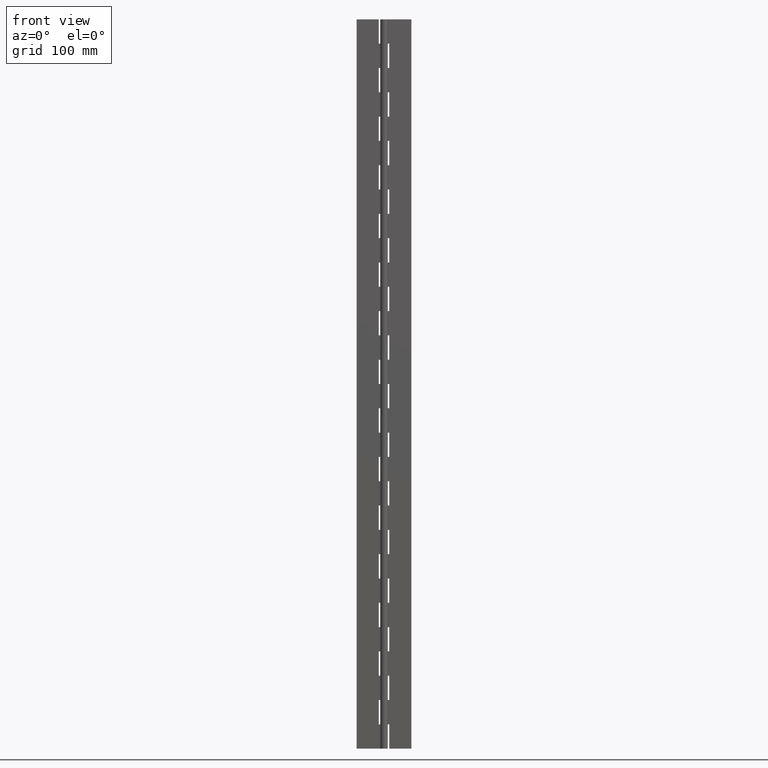
[diagram: clean part render]
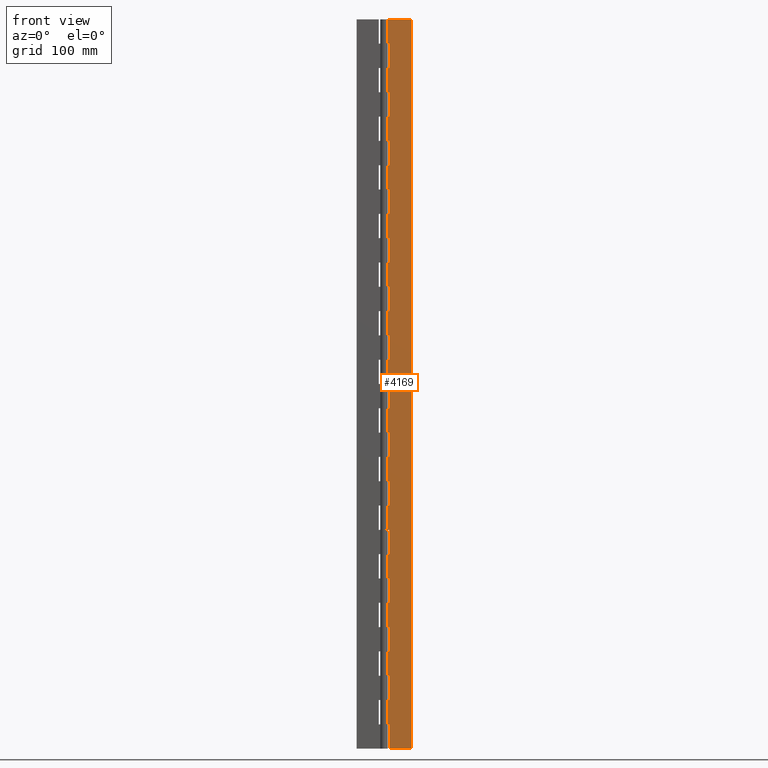
[diagram: same view with one face highlighted and labeled with its STEP entity id]
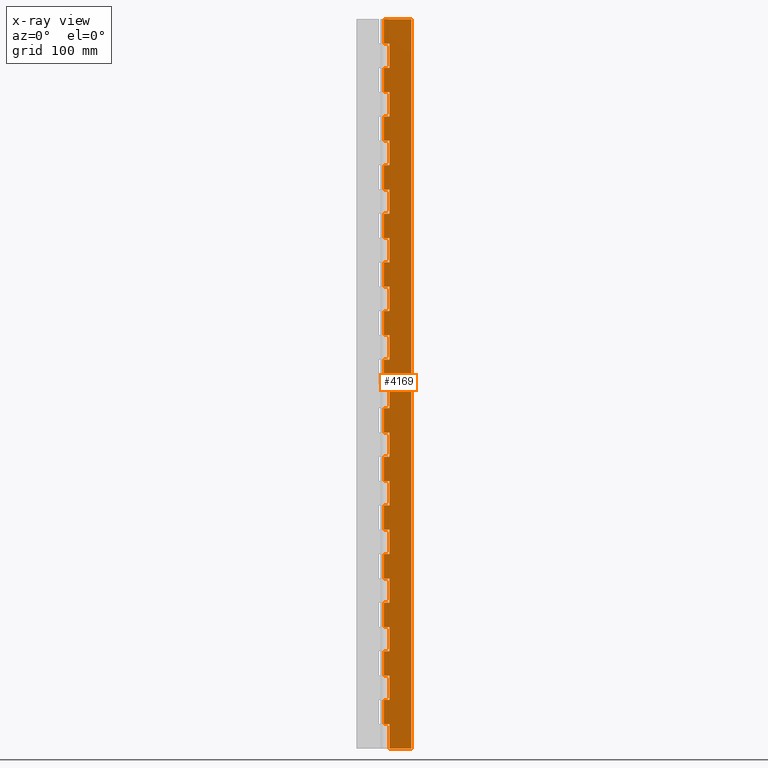
[diagram: x-ray of the same camera — body ghosted, the highlighted face saturated]
A machine part, front view. The second image highlights one B-rep face of the part: STEP entity #4169.
The next image is the same camera in x-ray: the body ghosted, the highlighted face saturated — about 0% of this face is hidden behind the body in this view.
In plain terms, the highlighted face is a freeform B-spline surface patch.
Its self-contained STEP definition (entity closure, byte-faithful):
#49=CARTESIAN_POINT('',(4.299995999999895,1.499999999999946,580.0));
#50=VERTEX_POINT('',#49);
#51=CARTESIAN_POINT('',(-2.755364E-016,1.500000000000000,580.0));
#52=VERTEX_POINT('',#51);
#53=CARTESIAN_POINT('',(4.299995999999895,1.499999999999946,580.0));
#54=CARTESIAN_POINT('',(-2.755364E-016,1.500000000000000,580.0));
#55=QUASI_UNIFORM_CURVE('',1,(#53,#54),.UNSPECIFIED.,.F.,.U.);
#56=EDGE_CURVE('',#50,#52,#55,.T.);
#127=CARTESIAN_POINT('',(-2.755364E-016,1.500000000000000,560.0));
#128=VERTEX_POINT('',#127);
#129=CARTESIAN_POINT('',(4.299995999999895,1.499999999999946,560.0));
#130=VERTEX_POINT('',#129);
#131=CARTESIAN_POINT('',(-2.755364E-016,1.500000000000000,560.0));
#132=CARTESIAN_POINT('',(4.299995999999895,1.499999999999946,560.0));
#133=QUASI_UNIFORM_CURVE('',1,(#131,#132),.UNSPECIFIED.,.F.,.U.);
#134=EDGE_CURVE('',#128,#130,#133,.T.);
#205=CARTESIAN_POINT('',(4.299995999999895,1.499999999999946,560.0));
#206=CARTESIAN_POINT('',(4.299995999999895,1.499999999999946,580.0));
#207=QUASI_UNIFORM_CURVE('',1,(#205,#206),.UNSPECIFIED.,.F.,.U.);
#208=EDGE_CURVE('',#130,#50,#207,.T.);
#225=CARTESIAN_POINT('',(4.299995999999895,1.499999999999946,540.0));
#226=VERTEX_POINT('',#225);
#227=CARTESIAN_POINT('',(-2.755364E-016,1.500000000000000,540.0));
#228=VERTEX_POINT('',#227);
#229=CARTESIAN_POINT('',(4.299995999999895,1.499999999999946,540.0));
#230=CARTESIAN_POINT('',(-2.755364E-016,1.500000000000000,540.0));
#231=QUASI_UNIFORM_CURVE('',1,(#229,#230),.UNSPECIFIED.,.F.,.U.);
#232=EDGE_CURVE('',#226,#228,#231,.T.);
#303=CARTESIAN_POINT('',(-2.755364E-016,1.500000000000000,520.0));
#304=VERTEX_POINT('',#303);
#305=CARTESIAN_POINT('',(4.299995999999895,1.499999999999946,520.0));
#306=VERTEX_POINT('',#305);
#307=CARTESIAN_POINT('',(-2.755364E-016,1.500000000000000,520.0));
#308=CARTESIAN_POINT('',(4.299995999999895,1.499999999999946,520.0));
#309=QUASI_UNIFORM_CURVE('',1,(#307,#308),.UNSPECIFIED.,.F.,.U.);
#310=EDGE_CURVE('',#304,#306,#309,.T.);
#381=CARTESIAN_POINT('',(4.299995999999895,1.499999999999946,520.0));
#382=CARTESIAN_POINT('',(4.299995999999895,1.499999999999946,540.0));
#383=QUASI_UNIFORM_CURVE('',1,(#381,#382),.UNSPECIFIED.,.F.,.U.);
#384=EDGE_CURVE('',#306,#226,#383,.T.);
#401=CARTESIAN_POINT('',(4.299995999999895,1.499999999999946,500.0));
#402=VERTEX_POINT('',#401);
#403=CARTESIAN_POINT('',(-2.755364E-016,1.500000000000000,500.0));
#404=VERTEX_POINT('',#403);
#405=CARTESIAN_POINT('',(4.299995999999895,1.499999999999946,500.0));
#406=CARTESIAN_POINT('',(-2.755364E-016,1.500000000000000,500.0));
#407=QUASI_UNIFORM_CURVE('',1,(#405,#406),.UNSPECIFIED.,.F.,.U.);
#408=EDGE_CURVE('',#402,#404,#407,.T.);
#479=CARTESIAN_POINT('',(-2.755364E-016,1.500000000000000,480.0));
#480=VERTEX_POINT('',#479);
#481=CARTESIAN_POINT('',(4.299995999999895,1.499999999999946,480.0));
#482=VERTEX_POINT('',#481);
#483=CARTESIAN_POINT('',(-2.755364E-016,1.500000000000000,480.0));
#484=CARTESIAN_POINT('',(4.299995999999895,1.499999999999946,480.0));
#485=QUASI_UNIFORM_CURVE('',1,(#483,#484),.UNSPECIFIED.,.F.,.U.);
#486=EDGE_CURVE('',#480,#482,#485,.T.);
#557=CARTESIAN_POINT('',(4.299995999999895,1.499999999999946,480.0));
#558=CARTESIAN_POINT('',(4.299995999999895,1.499999999999946,500.0));
#559=QUASI_UNIFORM_CURVE('',1,(#557,#558),.UNSPECIFIED.,.F.,.U.);
#560=EDGE_CURVE('',#482,#402,#559,.T.);
#577=CARTESIAN_POINT('',(4.299995999999895,1.499999999999946,460.0));
#578=VERTEX_POINT('',#577);
#579=CARTESIAN_POINT('',(-2.755364E-016,1.500000000000000,460.0));
#580=VERTEX_POINT('',#579);
#581=CARTESIAN_POINT('',(4.299995999999895,1.499999999999946,460.0));
#582=CARTESIAN_POINT('',(-2.755364E-016,1.500000000000000,460.0));
#583=QUASI_UNIFORM_CURVE('',1,(#581,#582),.UNSPECIFIED.,.F.,.U.);
#584=EDGE_CURVE('',#578,#580,#583,.T.);
#655=CARTESIAN_POINT('',(-2.755364E-016,1.500000000000000,440.0));
#656=VERTEX_POINT('',#655);
#657=CARTESIAN_POINT('',(4.299995999999895,1.499999999999946,440.0));
#658=VERTEX_POINT('',#657);
#659=CARTESIAN_POINT('',(-2.755364E-016,1.500000000000000,440.0));
#660=CARTESIAN_POINT('',(4.299995999999895,1.499999999999946,440.0));
#661=QUASI_UNIFORM_CURVE('',1,(#659,#660),.UNSPECIFIED.,.F.,.U.);
#662=EDGE_CURVE('',#656,#658,#661,.T.);
#733=CARTESIAN_POINT('',(4.299995999999895,1.499999999999946,440.0));
#734=CARTESIAN_POINT('',(4.299995999999895,1.499999999999946,460.0));
#735=QUASI_UNIFORM_CURVE('',1,(#733,#734),.UNSPECIFIED.,.F.,.U.);
#736=EDGE_CURVE('',#658,#578,#735,.T.);
#753=CARTESIAN_POINT('',(4.299995999999895,1.499999999999946,420.0));
#754=VERTEX_POINT('',#753);
#755=CARTESIAN_POINT('',(-2.755364E-016,1.500000000000000,420.0));
#756=VERTEX_POINT('',#755);
#757=CARTESIAN_POINT('',(4.299995999999895,1.499999999999946,420.0));
#758=CARTESIAN_POINT('',(-2.755364E-016,1.500000000000000,420.0));
#759=QUASI_UNIFORM_CURVE('',1,(#757,#758),.UNSPECIFIED.,.F.,.U.);
#760=EDGE_CURVE('',#754,#756,#759,.T.);
#831=CARTESIAN_POINT('',(-2.755364E-016,1.500000000000000,400.0));
#832=VERTEX_POINT('',#831);
#833=CARTESIAN_POINT('',(4.299995999999895,1.499999999999946,400.0));
#834=VERTEX_POINT('',#833);
#835=CARTESIAN_POINT('',(-2.755364E-016,1.500000000000000,400.0));
#836=CARTESIAN_POINT('',(4.299995999999895,1.499999999999946,400.0));
#837=QUASI_UNIFORM_CURVE('',1,(#835,#836),.UNSPECIFIED.,.F.,.U.);
#838=EDGE_CURVE('',#832,#834,#837,.T.);
#909=CARTESIAN_POINT('',(4.299995999999895,1.499999999999946,400.0));
#910=CARTESIAN_POINT('',(4.299995999999895,1.499999999999946,420.0));
#911=QUASI_UNIFORM_CURVE('',1,(#909,#910),.UNSPECIFIED.,.F.,.U.);
#912=EDGE_CURVE('',#834,#754,#911,.T.);
#929=CARTESIAN_POINT('',(4.299995999999895,1.499999999999946,380.0));
#930=VERTEX_POINT('',#929);
#931=CARTESIAN_POINT('',(-2.755364E-016,1.500000000000000,380.0));
#932=VERTEX_POINT('',#931);
#933=CARTESIAN_POINT('',(4.299995999999895,1.499999999999946,380.0));
#934=CARTESIAN_POINT('',(-2.755364E-016,1.500000000000000,380.0));
#935=QUASI_UNIFORM_CURVE('',1,(#933,#934),.UNSPECIFIED.,.F.,.U.);
#936=EDGE_CURVE('',#930,#932,#935,.T.);
#1007=CARTESIAN_POINT('',(-2.755364E-016,1.500000000000000,360.0));
#1008=VERTEX_POINT('',#1007);
#1009=CARTESIAN_POINT('',(4.299995999999895,1.499999999999946,360.0));
#1010=VERTEX_POINT('',#1009);
#1011=CARTESIAN_POINT('',(-2.755364E-016,1.500000000000000,360.0));
#1012=CARTESIAN_POINT('',(4.299995999999895,1.499999999999946,360.0));
#1013=QUASI_UNIFORM_CURVE('',1,(#1011,#1012),.UNSPECIFIED.,.F.,.U.);
#1014=EDGE_CURVE('',#1008,#1010,#1013,.T.);
#1085=CARTESIAN_POINT('',(4.299995999999895,1.499999999999946,360.0));
#1086=CARTESIAN_POINT('',(4.299995999999895,1.499999999999946,380.0));
#1087=QUASI_UNIFORM_CURVE('',1,(#1085,#1086),.UNSPECIFIED.,.F.,.U.);
#1088=EDGE_CURVE('',#1010,#930,#1087,.T.);
#1105=CARTESIAN_POINT('',(4.299995999999895,1.499999999999946,340.0));
#1106=VERTEX_POINT('',#1105);
#1107=CARTESIAN_POINT('',(-2.755364E-016,1.500000000000000,340.0));
#1108=VERTEX_POINT('',#1107);
#1109=CARTESIAN_POINT('',(4.299995999999895,1.499999999999946,340.0));
#1110=CARTESIAN_POINT('',(-2.755364E-016,1.500000000000000,340.0));
#1111=QUASI_UNIFORM_CURVE('',1,(#1109,#1110),.UNSPECIFIED.,.F.,.U.);
#1112=EDGE_CURVE('',#1106,#1108,#1111,.T.);
#1183=CARTESIAN_POINT('',(-2.755364E-016,1.500000000000000,320.0));
#1184=VERTEX_POINT('',#1183);
#1185=CARTESIAN_POINT('',(4.299995999999895,1.499999999999946,320.0));
#1186=VERTEX_POINT('',#1185);
#1187=CARTESIAN_POINT('',(-2.755364E-016,1.500000000000000,320.0));
#1188=CARTESIAN_POINT('',(4.299995999999895,1.499999999999946,320.0));
#1189=QUASI_UNIFORM_CURVE('',1,(#1187,#1188),.UNSPECIFIED.,.F.,.U.);
#1190=EDGE_CURVE('',#1184,#1186,#1189,.T.);
#1261=CARTESIAN_POINT('',(4.299995999999895,1.499999999999946,320.0));
#1262=CARTESIAN_POINT('',(4.299995999999895,1.499999999999946,340.0));
#1263=QUASI_UNIFORM_CURVE('',1,(#1261,#1262),.UNSPECIFIED.,.F.,.U.);
#1264=EDGE_CURVE('',#1186,#1106,#1263,.T.);
#1281=CARTESIAN_POINT('',(4.299995999999895,1.499999999999946,300.0));
#1282=VERTEX_POINT('',#1281);
#1283=CARTESIAN_POINT('',(-2.755364E-016,1.500000000000000,300.0));
#1284=VERTEX_POINT('',#1283);
#1285=CARTESIAN_POINT('',(4.299995999999895,1.499999999999946,300.0));
#1286=CARTESIAN_POINT('',(-2.755364E-016,1.500000000000000,300.0));
#1287=QUASI_UNIFORM_CURVE('',1,(#1285,#1286),.UNSPECIFIED.,.F.,.U.);
#1288=EDGE_CURVE('',#1282,#1284,#1287,.T.);
#1359=CARTESIAN_POINT('',(-2.755364E-016,1.500000000000000,280.0));
#1360=VERTEX_POINT('',#1359);
#1361=CARTESIAN_POINT('',(4.299995999999895,1.499999999999946,280.0));
#1362=VERTEX_POINT('',#1361);
#1363=CARTESIAN_POINT('',(-2.755364E-016,1.500000000000000,280.0));
#1364=CARTESIAN_POINT('',(4.299995999999895,1.499999999999946,280.0));
#1365=QUASI_UNIFORM_CURVE('',1,(#1363,#1364),.UNSPECIFIED.,.F.,.U.);
#1366=EDGE_CURVE('',#1360,#1362,#1365,.T.);
#1437=CARTESIAN_POINT('',(4.299995999999895,1.499999999999946,280.0));
#1438=CARTESIAN_POINT('',(4.299995999999895,1.499999999999946,300.0));
#1439=QUASI_UNIFORM_CURVE('',1,(#1437,#1438),.UNSPECIFIED.,.F.,.U.);
#1440=EDGE_CURVE('',#1362,#1282,#1439,.T.);
#1457=CARTESIAN_POINT('',(4.299995999999895,1.499999999999946,260.0));
#1458=VERTEX_POINT('',#1457);
#1459=CARTESIAN_POINT('',(-2.755364E-016,1.500000000000000,260.0));
#1460=VERTEX_POINT('',#1459);
#1461=CARTESIAN_POINT('',(4.299995999999895,1.499999999999946,260.0));
#1462=CARTESIAN_POINT('',(-2.755364E-016,1.500000000000000,260.0));
#1463=QUASI_UNIFORM_CURVE('',1,(#1461,#1462),.UNSPECIFIED.,.F.,.U.);
#1464=EDGE_CURVE('',#1458,#1460,#1463,.T.);
#1535=CARTESIAN_POINT('',(-2.755364E-016,1.500000000000000,240.0));
#1536=VERTEX_POINT('',#1535);
#1537=CARTESIAN_POINT('',(4.299995999999895,1.499999999999946,240.0));
#1538=VERTEX_POINT('',#1537);
#1539=CARTESIAN_POINT('',(-2.755364E-016,1.500000000000000,240.0));
#1540=CARTESIAN_POINT('',(4.299995999999895,1.499999999999946,240.0));
#1541=QUASI_UNIFORM_CURVE('',1,(#1539,#1540),.UNSPECIFIED.,.F.,.U.);
#1542=EDGE_CURVE('',#1536,#1538,#1541,.T.);
#1613=CARTESIAN_POINT('',(4.299995999999895,1.499999999999946,240.0));
#1614=CARTESIAN_POINT('',(4.299995999999895,1.499999999999946,260.0));
#1615=QUASI_UNIFORM_CURVE('',1,(#1613,#1614),.UNSPECIFIED.,.F.,.U.);
#1616=EDGE_CURVE('',#1538,#1458,#1615,.T.);
#1633=CARTESIAN_POINT('',(4.299995999999895,1.499999999999946,220.0));
#1634=VERTEX_POINT('',#1633);
#1635=CARTESIAN_POINT('',(-2.755364E-016,1.500000000000000,220.0));
#1636=VERTEX_POINT('',#1635);
#1637=CARTESIAN_POINT('',(4.299995999999895,1.499999999999946,220.0));
#1638=CARTESIAN_POINT('',(-2.755364E-016,1.500000000000000,220.0));
#1639=QUASI_UNIFORM_CURVE('',1,(#1637,#1638),.UNSPECIFIED.,.F.,.U.);
#1640=EDGE_CURVE('',#1634,#1636,#1639,.T.);
#1711=CARTESIAN_POINT('',(-2.755364E-016,1.500000000000000,200.0));
#1712=VERTEX_POINT('',#1711);
#1713=CARTESIAN_POINT('',(4.299995999999895,1.499999999999946,200.0));
#1714=VERTEX_POINT('',#1713);
#1715=CARTESIAN_POINT('',(-2.755364E-016,1.500000000000000,200.0));
#1716=CARTESIAN_POINT('',(4.299995999999895,1.499999999999946,200.0));
#1717=QUASI_UNIFORM_CURVE('',1,(#1715,#1716),.UNSPECIFIED.,.F.,.U.);
#1718=EDGE_CURVE('',#1712,#1714,#1717,.T.);
#1789=CARTESIAN_POINT('',(4.299995999999895,1.499999999999946,200.0));
#1790=CARTESIAN_POINT('',(4.299995999999895,1.499999999999946,220.0));
#1791=QUASI_UNIFORM_CURVE('',1,(#1789,#1790),.UNSPECIFIED.,.F.,.U.);
#1792=EDGE_CURVE('',#1714,#1634,#1791,.T.);
#1809=CARTESIAN_POINT('',(4.299995999999895,1.499999999999946,180.0));
#1810=VERTEX_POINT('',#1809);
#1811=CARTESIAN_POINT('',(-2.755364E-016,1.500000000000000,180.0));
#1812=VERTEX_POINT('',#1811);
#1813=CARTESIAN_POINT('',(4.299995999999895,1.499999999999946,180.0));
#1814=CARTESIAN_POINT('',(-2.755364E-016,1.500000000000000,180.0));
#1815=QUASI_UNIFORM_CURVE('',1,(#1813,#1814),.UNSPECIFIED.,.F.,.U.);
#1816=EDGE_CURVE('',#1810,#1812,#1815,.T.);
#1887=CARTESIAN_POINT('',(-2.755364E-016,1.500000000000000,160.0));
#1888=VERTEX_POINT('',#1887);
#1889=CARTESIAN_POINT('',(4.299995999999895,1.499999999999946,160.0));
#1890=VERTEX_POINT('',#1889);
#1891=CARTESIAN_POINT('',(-2.755364E-016,1.500000000000000,160.0));
#1892=CARTESIAN_POINT('',(4.299995999999895,1.499999999999946,160.0));
#1893=QUASI_UNIFORM_CURVE('',1,(#1891,#1892),.UNSPECIFIED.,.F.,.U.);
#1894=EDGE_CURVE('',#1888,#1890,#1893,.T.);
#1965=CARTESIAN_POINT('',(4.299995999999895,1.499999999999946,160.0));
#1966=CARTESIAN_POINT('',(4.299995999999895,1.499999999999946,180.0));
#1967=QUASI_UNIFORM_CURVE('',1,(#1965,#1966),.UNSPECIFIED.,.F.,.U.);
#1968=EDGE_CURVE('',#1890,#1810,#1967,.T.);
#1985=CARTESIAN_POINT('',(4.299995999999895,1.499999999999946,140.0));
#1986=VERTEX_POINT('',#1985);
#1987=CARTESIAN_POINT('',(-2.755364E-016,1.500000000000000,140.0));
#1988=VERTEX_POINT('',#1987);
#1989=CARTESIAN_POINT('',(4.299995999999895,1.499999999999946,140.0));
#1990=CARTESIAN_POINT('',(-2.755364E-016,1.500000000000000,140.0));
#1991=QUASI_UNIFORM_CURVE('',1,(#1989,#1990),.UNSPECIFIED.,.F.,.U.);
#1992=EDGE_CURVE('',#1986,#1988,#1991,.T.);
#2063=CARTESIAN_POINT('',(-2.755364E-016,1.500000000000000,120.0));
#2064=VERTEX_POINT('',#2063);
#2065=CARTESIAN_POINT('',(4.299995999999895,1.499999999999946,120.0));
#2066=VERTEX_POINT('',#2065);
#2067=CARTESIAN_POINT('',(-2.755364E-016,1.500000000000000,120.0));
#2068=CARTESIAN_POINT('',(4.299995999999895,1.499999999999946,120.0));
#2069=QUASI_UNIFORM_CURVE('',1,(#2067,#2068),.UNSPECIFIED.,.F.,.U.);
#2070=EDGE_CURVE('',#2064,#2066,#2069,.T.);
#2141=CARTESIAN_POINT('',(4.299995999999895,1.499999999999946,120.0));
#2142=CARTESIAN_POINT('',(4.299995999999895,1.499999999999946,140.0));
#2143=QUASI_UNIFORM_CURVE('',1,(#2141,#2142),.UNSPECIFIED.,.F.,.U.);
#2144=EDGE_CURVE('',#2066,#1986,#2143,.T.);
#2161=CARTESIAN_POINT('',(4.299995999999895,1.499999999999946,100.0));
#2162=VERTEX_POINT('',#2161);
#2163=CARTESIAN_POINT('',(-2.755364E-016,1.500000000000000,100.0));
#2164=VERTEX_POINT('',#2163);
#2165=CARTESIAN_POINT('',(4.299995999999895,1.499999999999946,100.0));
#2166=CARTESIAN_POINT('',(-2.755364E-016,1.500000000000000,100.0));
#2167=QUASI_UNIFORM_CURVE('',1,(#2165,#2166),.UNSPECIFIED.,.F.,.U.);
#2168=EDGE_CURVE('',#2162,#2164,#2167,.T.);
#2239=CARTESIAN_POINT('',(-2.755364E-016,1.500000000000000,80.0));
#2240=VERTEX_POINT('',#2239);
#2241=CARTESIAN_POINT('',(4.299995999999895,1.499999999999946,80.0));
#2242=VERTEX_POINT('',#2241);
#2243=CARTESIAN_POINT('',(-2.755364E-016,1.500000000000000,80.0));
#2244=CARTESIAN_POINT('',(4.299995999999895,1.499999999999946,80.0));
#2245=QUASI_UNIFORM_CURVE('',1,(#2243,#2244),.UNSPECIFIED.,.F.,.U.);
#2246=EDGE_CURVE('',#2240,#2242,#2245,.T.);
#2317=CARTESIAN_POINT('',(4.299995999999895,1.499999999999946,80.0));
#2318=CARTESIAN_POINT('',(4.299995999999895,1.499999999999946,100.0));
#2319=QUASI_UNIFORM_CURVE('',1,(#2317,#2318),.UNSPECIFIED.,.F.,.U.);
#2320=EDGE_CURVE('',#2242,#2162,#2319,.T.);
#2337=CARTESIAN_POINT('',(4.299995999999895,1.499999999999946,60.0));
#2338=VERTEX_POINT('',#2337);
#2339=CARTESIAN_POINT('',(-2.755364E-016,1.500000000000000,60.0));
#2340=VERTEX_POINT('',#2339);
#2341=CARTESIAN_POINT('',(4.299995999999895,1.499999999999946,60.0));
#2342=CARTESIAN_POINT('',(-2.755364E-016,1.500000000000000,60.0));
#2343=QUASI_UNIFORM_CURVE('',1,(#2341,#2342),.UNSPECIFIED.,.F.,.U.);
#2344=EDGE_CURVE('',#2338,#2340,#2343,.T.);
#2415=CARTESIAN_POINT('',(-2.755364E-016,1.500000000000000,40.0));
#2416=VERTEX_POINT('',#2415);
#2417=CARTESIAN_POINT('',(4.299995999999895,1.499999999999946,40.0));
#2418=VERTEX_POINT('',#2417);
#2419=CARTESIAN_POINT('',(-2.755364E-016,1.500000000000000,40.0));
#2420=CARTESIAN_POINT('',(4.299995999999895,1.499999999999946,40.0));
#2421=QUASI_UNIFORM_CURVE('',1,(#2419,#2420),.UNSPECIFIED.,.F.,.U.);
#2422=EDGE_CURVE('',#2416,#2418,#2421,.T.);
#2493=CARTESIAN_POINT('',(4.299995999999895,1.499999999999946,40.0));
#2494=CARTESIAN_POINT('',(4.299995999999895,1.499999999999946,60.0));
#2495=QUASI_UNIFORM_CURVE('',1,(#2493,#2494),.UNSPECIFIED.,.F.,.U.);
#2496=EDGE_CURVE('',#2418,#2338,#2495,.T.);
#2513=CARTESIAN_POINT('',(4.299995999999895,1.499999999999946,0.0));
#2514=VERTEX_POINT('',#2513);
#2515=CARTESIAN_POINT('',(4.299995999999895,1.499999999999946,20.0));
#2516=VERTEX_POINT('',#2515);
#2517=CARTESIAN_POINT('',(4.299995999999895,1.499999999999946,0.0));
#2518=CARTESIAN_POINT('',(4.299995999999895,1.499999999999946,20.0));
#2519=QUASI_UNIFORM_CURVE('',1,(#2517,#2518),.UNSPECIFIED.,.F.,.U.);
#2520=EDGE_CURVE('',#2514,#2516,#2519,.T.);
#2549=CARTESIAN_POINT('',(-2.755364E-016,1.500000000000000,20.0));
#2550=VERTEX_POINT('',#2549);
#2551=CARTESIAN_POINT('',(4.299995999999895,1.499999999999946,20.0));
#2552=CARTESIAN_POINT('',(-2.755364E-016,1.500000000000000,20.0));
#2553=QUASI_UNIFORM_CURVE('',1,(#2551,#2552),.UNSPECIFIED.,.F.,.U.);
#2554=EDGE_CURVE('',#2516,#2550,#2553,.T.);
#2619=CARTESIAN_POINT('',(-2.755364E-016,1.500000000000000,599.999978000000060));
#2620=VERTEX_POINT('',#2619);
#2621=CARTESIAN_POINT('',(22.500000000000000,1.500000000000000,599.999978000000060));
#2622=VERTEX_POINT('',#2621);
#2623=CARTESIAN_POINT('',(-2.755364E-016,1.500000000000000,599.999978000000060));
#2624=CARTESIAN_POINT('',(22.500000000000000,1.500000000000000,599.999978000000060));
#2625=QUASI_UNIFORM_CURVE('',1,(#2623,#2624),.UNSPECIFIED.,.F.,.U.);
#2626=EDGE_CURVE('',#2620,#2622,#2625,.T.);
#2697=CARTESIAN_POINT('',(22.500000000000000,1.500000000000000,0.0));
#2698=VERTEX_POINT('',#2697);
#2712=CARTESIAN_POINT('',(22.500000000000000,1.500000000000000,599.999978000000060));
#2713=CARTESIAN_POINT('',(22.500000000000000,1.500000000000000,0.0));
#2714=QUASI_UNIFORM_CURVE('',1,(#2712,#2713),.UNSPECIFIED.,.F.,.U.);
#2715=EDGE_CURVE('',#2622,#2698,#2714,.T.);
#2732=CARTESIAN_POINT('',(4.299995999999895,1.499999999999946,0.0));
#2733=CARTESIAN_POINT('',(22.500000000000000,1.500000000000000,0.0));
#2734=QUASI_UNIFORM_CURVE('',1,(#2732,#2733),.UNSPECIFIED.,.F.,.U.);
#2735=EDGE_CURVE('',#2514,#2698,#2734,.T.);
#2762=CARTESIAN_POINT('',(-2.755364E-016,1.500000000000000,40.0));
#2763=CARTESIAN_POINT('',(-2.755364E-016,1.500000000000000,20.0));
#2764=QUASI_UNIFORM_CURVE('',1,(#2762,#2763),.UNSPECIFIED.,.F.,.U.);
#2765=EDGE_CURVE('',#2416,#2550,#2764,.T.);
#2848=CARTESIAN_POINT('',(-2.755364E-016,1.500000000000000,80.0));
#2849=CARTESIAN_POINT('',(-2.755364E-016,1.500000000000000,60.0));
#2850=QUASI_UNIFORM_CURVE('',1,(#2848,#2849),.UNSPECIFIED.,.F.,.U.);
#2851=EDGE_CURVE('',#2240,#2340,#2850,.T.);
#2934=CARTESIAN_POINT('',(-2.755364E-016,1.500000000000000,120.0));
#2935=CARTESIAN_POINT('',(-2.755364E-016,1.500000000000000,100.0));
#2936=QUASI_UNIFORM_CURVE('',1,(#2934,#2935),.UNSPECIFIED.,.F.,.U.);
#2937=EDGE_CURVE('',#2064,#2164,#2936,.T.);
#3020=CARTESIAN_POINT('',(-2.755364E-016,1.500000000000000,160.0));
#3021=CARTESIAN_POINT('',(-2.755364E-016,1.500000000000000,140.0));
#3022=QUASI_UNIFORM_CURVE('',1,(#3020,#3021),.UNSPECIFIED.,.F.,.U.);
#3023=EDGE_CURVE('',#1888,#1988,#3022,.T.);
#3106=CARTESIAN_POINT('',(-2.755364E-016,1.500000000000000,200.0));
#3107=CARTESIAN_POINT('',(-2.755364E-016,1.500000000000000,180.0));
#3108=QUASI_UNIFORM_CURVE('',1,(#3106,#3107),.UNSPECIFIED.,.F.,.U.);
#3109=EDGE_CURVE('',#1712,#1812,#3108,.T.);
#3192=CARTESIAN_POINT('',(-2.755364E-016,1.500000000000000,240.0));
#3193=CARTESIAN_POINT('',(-2.755364E-016,1.500000000000000,220.0));
#3194=QUASI_UNIFORM_CURVE('',1,(#3192,#3193),.UNSPECIFIED.,.F.,.U.);
#3195=EDGE_CURVE('',#1536,#1636,#3194,.T.);
#3278=CARTESIAN_POINT('',(-2.755364E-016,1.500000000000000,280.0));
#3279=CARTESIAN_POINT('',(-2.755364E-016,1.500000000000000,260.0));
#3280=QUASI_UNIFORM_CURVE('',1,(#3278,#3279),.UNSPECIFIED.,.F.,.U.);
#3281=EDGE_CURVE('',#1360,#1460,#3280,.T.);
#3364=CARTESIAN_POINT('',(-2.755364E-016,1.500000000000000,320.0));
#3365=CARTESIAN_POINT('',(-2.755364E-016,1.500000000000000,300.0));
#3366=QUASI_UNIFORM_CURVE('',1,(#3364,#3365),.UNSPECIFIED.,.F.,.U.);
#3367=EDGE_CURVE('',#1184,#1284,#3366,.T.);
#3450=CARTESIAN_POINT('',(-2.755364E-016,1.500000000000000,360.0));
#3451=CARTESIAN_POINT('',(-2.755364E-016,1.500000000000000,340.0));
#3452=QUASI_UNIFORM_CURVE('',1,(#3450,#3451),.UNSPECIFIED.,.F.,.U.);
#3453=EDGE_CURVE('',#1008,#1108,#3452,.T.);
#3536=CARTESIAN_POINT('',(-2.755364E-016,1.500000000000000,400.0));
#3537=CARTESIAN_POINT('',(-2.755364E-016,1.500000000000000,380.0));
#3538=QUASI_UNIFORM_CURVE('',1,(#3536,#3537),.UNSPECIFIED.,.F.,.U.);
#3539=EDGE_CURVE('',#832,#932,#3538,.T.);
#3622=CARTESIAN_POINT('',(-2.755364E-016,1.500000000000000,440.0));
#3623=CARTESIAN_POINT('',(-2.755364E-016,1.500000000000000,420.0));
#3624=QUASI_UNIFORM_CURVE('',1,(#3622,#3623),.UNSPECIFIED.,.F.,.U.);
#3625=EDGE_CURVE('',#656,#756,#3624,.T.);
#3708=CARTESIAN_POINT('',(-2.755364E-016,1.500000000000000,480.0));
#3709=CARTESIAN_POINT('',(-2.755364E-016,1.500000000000000,460.0));
#3710=QUASI_UNIFORM_CURVE('',1,(#3708,#3709),.UNSPECIFIED.,.F.,.U.);
#3711=EDGE_CURVE('',#480,#580,#3710,.T.);
#3794=CARTESIAN_POINT('',(-2.755364E-016,1.500000000000000,520.0));
#3795=CARTESIAN_POINT('',(-2.755364E-016,1.500000000000000,500.0));
#3796=QUASI_UNIFORM_CURVE('',1,(#3794,#3795),.UNSPECIFIED.,.F.,.U.);
#3797=EDGE_CURVE('',#304,#404,#3796,.T.);
#3886=CARTESIAN_POINT('',(-2.755364E-016,1.500000000000000,599.999978000000060));
#3887=CARTESIAN_POINT('',(-2.755364E-016,1.500000000000000,580.0));
#3888=QUASI_UNIFORM_CURVE('',1,(#3886,#3887),.UNSPECIFIED.,.F.,.U.);
#3889=EDGE_CURVE('',#2620,#52,#3888,.T.);
#3917=CARTESIAN_POINT('',(-2.755364E-016,1.500000000000000,560.0));
#3918=CARTESIAN_POINT('',(-2.755364E-016,1.500000000000000,540.0));
#3919=QUASI_UNIFORM_CURVE('',1,(#3917,#3918),.UNSPECIFIED.,.F.,.U.);
#3920=EDGE_CURVE('',#128,#228,#3919,.T.);
#4100=CARTESIAN_POINT('',(-1.123874956390631,1.500000000000000,-29.969997738183640));
#4101=CARTESIAN_POINT('',(-1.123874956390631,1.500000000000000,629.969991831437260));
#4102=CARTESIAN_POINT('',(23.623875559887662,1.500000000000000,-29.969997738183640));
#4103=CARTESIAN_POINT('',(23.623875559887662,1.500000000000000,629.969991831437260));
#4104=B_SPLINE_SURFACE_WITH_KNOTS('',1,1,((#4100,#4102),(#4101,#4103)),.UNSPECIFIED.,.F.,.F.,.U.,(2,2),(2,2),(0.0,659.939989569620930),(0.0,24.747750516278298),.UNSPECIFIED.);
#4105=ORIENTED_EDGE('',*,*,#134,.F.);
#4106=ORIENTED_EDGE('',*,*,#3920,.T.);
#4107=ORIENTED_EDGE('',*,*,#232,.F.);
#4108=ORIENTED_EDGE('',*,*,#384,.F.);
#4109=ORIENTED_EDGE('',*,*,#310,.F.);
#4110=ORIENTED_EDGE('',*,*,#3797,.T.);
#4111=ORIENTED_EDGE('',*,*,#408,.F.);
#4112=ORIENTED_EDGE('',*,*,#560,.F.);
#4113=ORIENTED_EDGE('',*,*,#486,.F.);
#4114=ORIENTED_EDGE('',*,*,#3711,.T.);
#4115=ORIENTED_EDGE('',*,*,#584,.F.);
#4116=ORIENTED_EDGE('',*,*,#736,.F.);
#4117=ORIENTED_EDGE('',*,*,#662,.F.);
#4118=ORIENTED_EDGE('',*,*,#3625,.T.);
#4119=ORIENTED_EDGE('',*,*,#760,.F.);
#4120=ORIENTED_EDGE('',*,*,#912,.F.);
#4121=ORIENTED_EDGE('',*,*,#838,.F.);
#4122=ORIENTED_EDGE('',*,*,#3539,.T.);
#4123=ORIENTED_EDGE('',*,*,#936,.F.);
#4124=ORIENTED_EDGE('',*,*,#1088,.F.);
#4125=ORIENTED_EDGE('',*,*,#1014,.F.);
#4126=ORIENTED_EDGE('',*,*,#3453,.T.);
#4127=ORIENTED_EDGE('',*,*,#1112,.F.);
#4128=ORIENTED_EDGE('',*,*,#1264,.F.);
#4129=ORIENTED_EDGE('',*,*,#1190,.F.);
#4130=ORIENTED_EDGE('',*,*,#3367,.T.);
#4131=ORIENTED_EDGE('',*,*,#1288,.F.);
#4132=ORIENTED_EDGE('',*,*,#1440,.F.);
#4133=ORIENTED_EDGE('',*,*,#1366,.F.);
#4134=ORIENTED_EDGE('',*,*,#3281,.T.);
#4135=ORIENTED_EDGE('',*,*,#1464,.F.);
#4136=ORIENTED_EDGE('',*,*,#1616,.F.);
#4137=ORIENTED_EDGE('',*,*,#1542,.F.);
#4138=ORIENTED_EDGE('',*,*,#3195,.T.);
#4139=ORIENTED_EDGE('',*,*,#1640,.F.);
#4140=ORIENTED_EDGE('',*,*,#1792,.F.);
#4141=ORIENTED_EDGE('',*,*,#1718,.F.);
#4142=ORIENTED_EDGE('',*,*,#3109,.T.);
#4143=ORIENTED_EDGE('',*,*,#1816,.F.);
#4144=ORIENTED_EDGE('',*,*,#1968,.F.);
#4145=ORIENTED_EDGE('',*,*,#1894,.F.);
#4146=ORIENTED_EDGE('',*,*,#3023,.T.);
#4147=ORIENTED_EDGE('',*,*,#1992,.F.);
#4148=ORIENTED_EDGE('',*,*,#2144,.F.);
#4149=ORIENTED_EDGE('',*,*,#2070,.F.);
#4150=ORIENTED_EDGE('',*,*,#2937,.T.);
#4151=ORIENTED_EDGE('',*,*,#2168,.F.);
#4152=ORIENTED_EDGE('',*,*,#2320,.F.);
#4153=ORIENTED_EDGE('',*,*,#2246,.F.);
#4154=ORIENTED_EDGE('',*,*,#2851,.T.);
#4155=ORIENTED_EDGE('',*,*,#2344,.F.);
#4156=ORIENTED_EDGE('',*,*,#2496,.F.);
#4157=ORIENTED_EDGE('',*,*,#2422,.F.);
#4158=ORIENTED_EDGE('',*,*,#2765,.T.);
#4159=ORIENTED_EDGE('',*,*,#2554,.F.);
#4160=ORIENTED_EDGE('',*,*,#2520,.F.);
#4161=ORIENTED_EDGE('',*,*,#2735,.T.);
#4162=ORIENTED_EDGE('',*,*,#2715,.F.);
#4163=ORIENTED_EDGE('',*,*,#2626,.F.);
#4164=ORIENTED_EDGE('',*,*,#3889,.T.);
#4165=ORIENTED_EDGE('',*,*,#56,.F.);
#4166=ORIENTED_EDGE('',*,*,#208,.F.);
#4167=EDGE_LOOP('',(#4105,#4106,#4107,#4108,#4109,#4110,#4111,#4112,#4113,#4114,#4115,#4116,#4117,#4118,#4119,#4120,#4121,#4122,#4123,#4124,#4125,#4126,#4127,#4128,#4129,#4130,#4131,#4132,#4133,#4134,#4135,#4136,#4137,#4138,#4139,#4140,#4141,#4142,#4143,#4144,#4145,#4146,#4147,#4148,#4149,#4150,#4151,#4152,#4153,#4154,#4155,#4156,#4157,#4158,#4159,#4160,#4161,#4162,#4163,#4164,#4165,#4166));
#4168=FACE_OUTER_BOUND('',#4167,.T.);
#4169=ADVANCED_FACE('',(#4168),#4104,.F.);